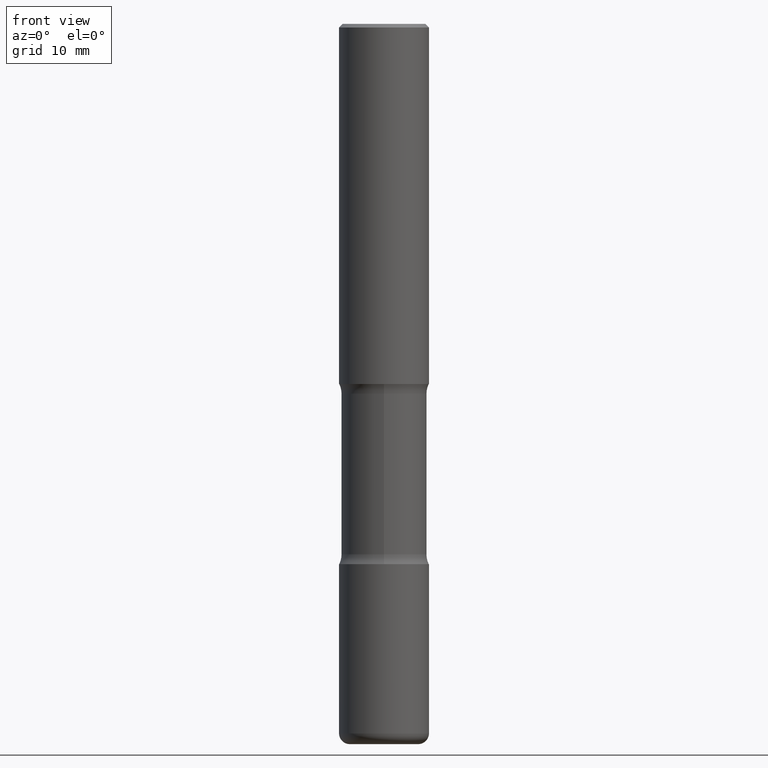
[diagram: clean part render]
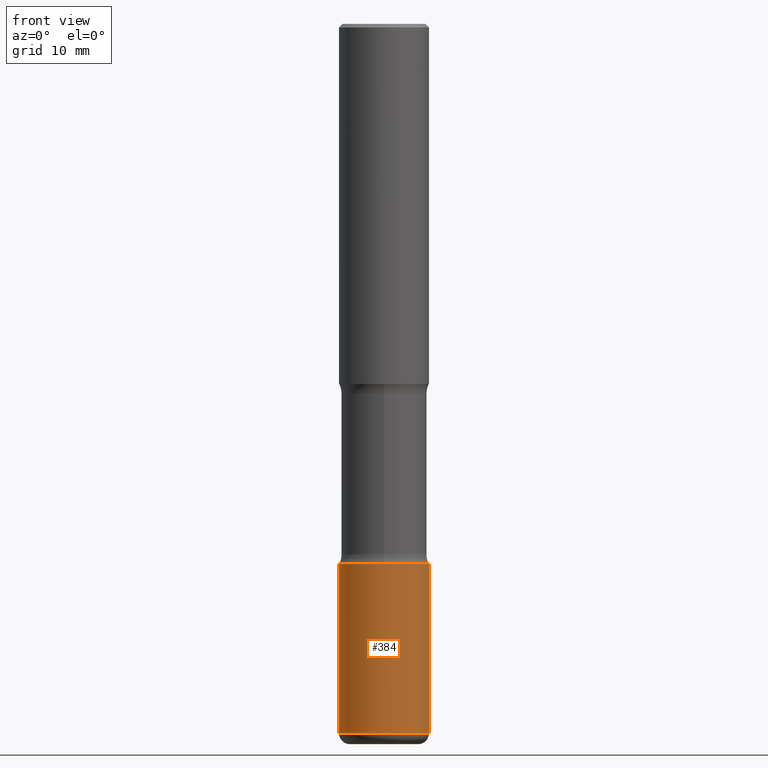
[diagram: same view with one face highlighted and labeled with its STEP entity id]
A machine part, front view. The second image highlights one B-rep face of the part: STEP entity #384.
In plain terms, the highlighted cylindrical surface (partial cylindrical patch) has radius 6.35 mm, axis along (-0, 0, 1).
Its self-contained STEP definition (entity closure, byte-faithful):
#6 = VECTOR ( 'NONE', #262, 39.37007874015748143 ) ;
#9 = LINE ( 'NONE', #469, #6 ) ;
#32 = VERTEX_POINT ( 'NONE', #94 ) ;
#34 = CIRCLE ( 'NONE', #549, 0.2500000000000002776 ) ;
#52 = EDGE_CURVE ( 'NONE', #78, #82, #9, .T. ) ;
#68 = DIRECTION ( 'NONE',  ( -2.445468806185136597E-29, 3.491481338843145583E-15, 1.000000000000000000 ) ) ;
#76 = ORIENTED_EDGE ( 'NONE', *, *, #495, .F. ) ;
#78 = VERTEX_POINT ( 'NONE', #196 ) ;
#82 = VERTEX_POINT ( 'NONE', #154 ) ;
#86 = DIRECTION ( 'NONE',  ( -2.445468806185136877E-29, 3.491481338843145188E-15, 1.000000000000000000 ) ) ;
#88 = EDGE_LOOP ( 'NONE', ( #76, #503, #513, #171 ) ) ;
#94 = CARTESIAN_POINT ( 'NONE',  ( -0.2500000000000003331, -1.198007963564174197E-14, -3.939999999999999947 ) ) ;
#112 = CARTESIAN_POINT ( 'NONE',  ( 9.635147096369438236E-29, -1.375643647504199401E-14, -3.939999999999999947 ) ) ;
#114 = CARTESIAN_POINT ( 'NONE',  ( 0.000000000000000000, 0.000000000000000000, 0.000000000000000000 ) ) ;
#128 = VERTEX_POINT ( 'NONE', #221 ) ;
#139 = VECTOR ( 'NONE', #86, 39.37007874015748143 ) ;
#148 = CARTESIAN_POINT ( 'NONE',  ( 7.336406418555409790E-29, -1.047444401652943635E-14, -3.000000000000000444 ) ) ;
#154 = CARTESIAN_POINT ( 'NONE',  ( 0.2500000000000002776, -1.222018468595100619E-14, -3.000000000000000444 ) ) ;
#158 = DIRECTION ( 'NONE',  ( 1.000000000000000000, -6.982962677686267499E-15, 0.000000000000000000 ) ) ;
#171 = ORIENTED_EDGE ( 'NONE', *, *, #280, .F. ) ;
#196 = CARTESIAN_POINT ( 'NONE',  ( 0.2500000000000003331, -1.550217714446356385E-14, -3.939999999999999947 ) ) ;
#204 = CARTESIAN_POINT ( 'NONE',  ( -0.2500000000000003331, 1.776356839400252831E-15, -1.229733772563727987E-29 ) ) ;
#205 = CIRCLE ( 'NONE', #382, 0.2500000000000003886 ) ;
#221 = CARTESIAN_POINT ( 'NONE',  ( -0.2500000000000002776, -1.033908340638546235E-14, -3.000000000000000444 ) ) ;
#262 = DIRECTION ( 'NONE',  ( -2.445468806185136877E-29, 3.491481338843145188E-15, 1.000000000000000000 ) ) ;
#280 = EDGE_CURVE ( 'NONE', #128, #82, #34, .T. ) ;
#292 = DIRECTION ( 'NONE',  ( -2.445468806185136597E-29, 3.491481338843145583E-15, 1.000000000000000000 ) ) ;
#328 = FACE_OUTER_BOUND ( 'NONE', #88, .T. ) ;
#345 = LINE ( 'NONE', #204, #139 ) ;
#379 = EDGE_CURVE ( 'NONE', #32, #78, #205, .T. ) ;
#382 = AXIS2_PLACEMENT_3D ( 'NONE', #112, #543, #158 ) ;
#384 = ADVANCED_FACE ( 'NONE', ( #328 ), #494, .T. ) ;
#446 = AXIS2_PLACEMENT_3D ( 'NONE', #114, #292, #452 ) ;
#452 = DIRECTION ( 'NONE',  ( 1.000000000000000000, -6.982962677686266711E-15, 4.876176775795935793E-29 ) ) ;
#456 = DIRECTION ( 'NONE',  ( 1.000000000000000000, -6.982962677686270655E-15, 0.000000000000000000 ) ) ;
#469 = CARTESIAN_POINT ( 'NONE',  ( 0.2500000000000003331, -1.745740669421569044E-15, 1.219044193948985630E-29 ) ) ;
#494 = CYLINDRICAL_SURFACE ( 'NONE', #446, 0.2500000000000003331 ) ;
#495 = EDGE_CURVE ( 'NONE', #32, #128, #345, .T. ) ;
#503 = ORIENTED_EDGE ( 'NONE', *, *, #379, .T. ) ;
#513 = ORIENTED_EDGE ( 'NONE', *, *, #52, .T. ) ;
#543 = DIRECTION ( 'NONE',  ( -2.445468806185136597E-29, 3.491481338843145583E-15, 1.000000000000000000 ) ) ;
#549 = AXIS2_PLACEMENT_3D ( 'NONE', #148, #68, #456 ) ;